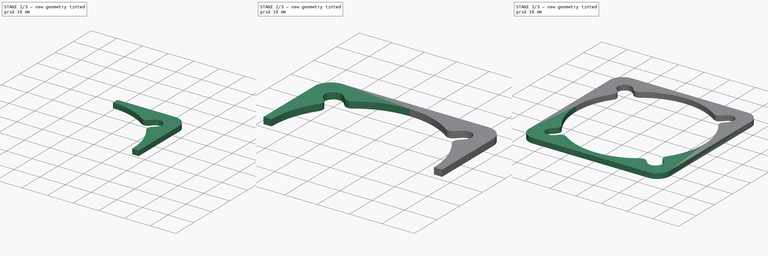
[diagram: build sequence overview — one tinted view per stage of 3, left to right]
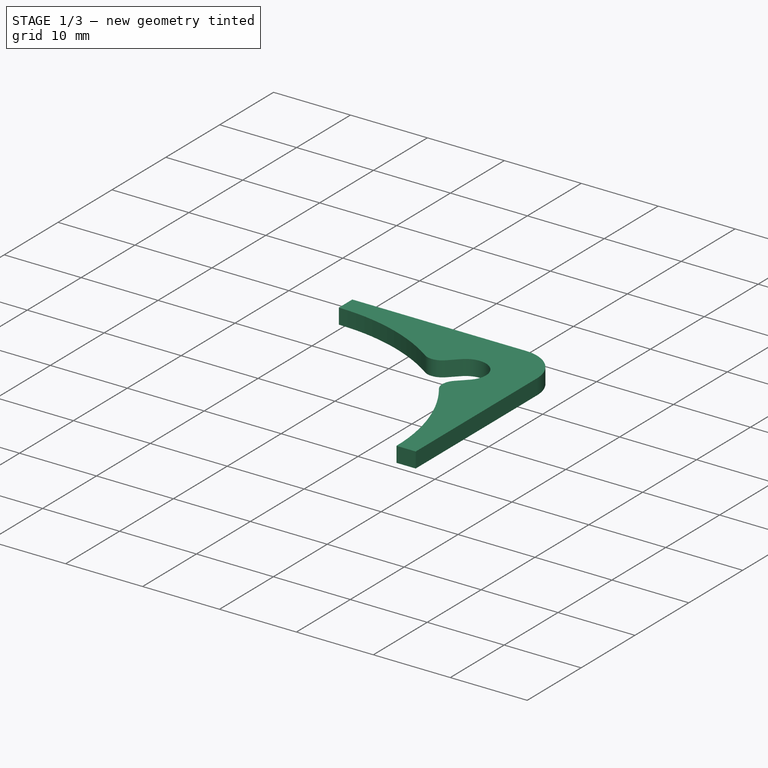
[diagram: stage 1 of 3 — iso view after this stage's code; geometry added in this stage tinted green]
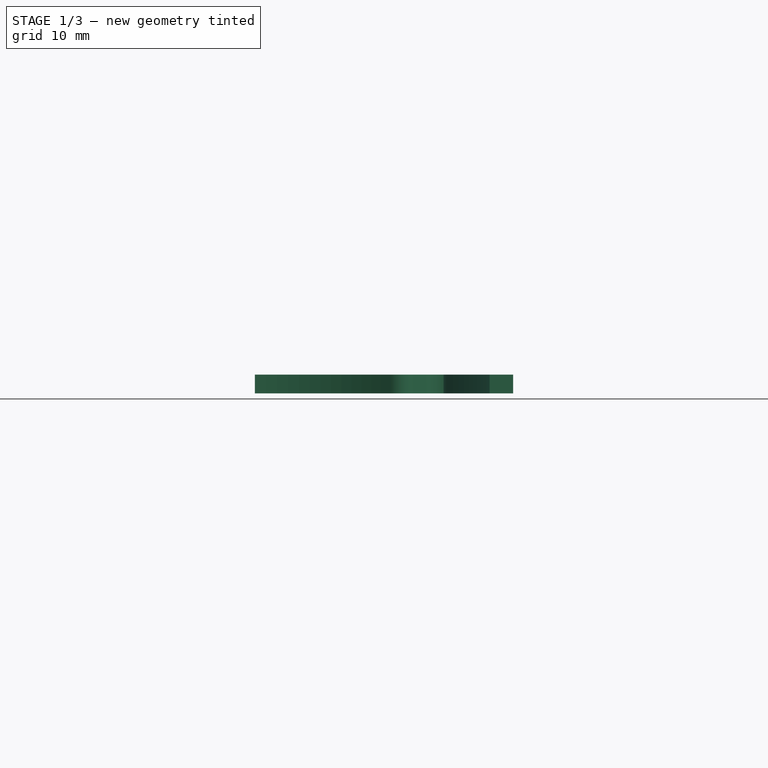
[diagram: stage 1 of 3 — front view after this stage's code; geometry added in this stage tinted green]
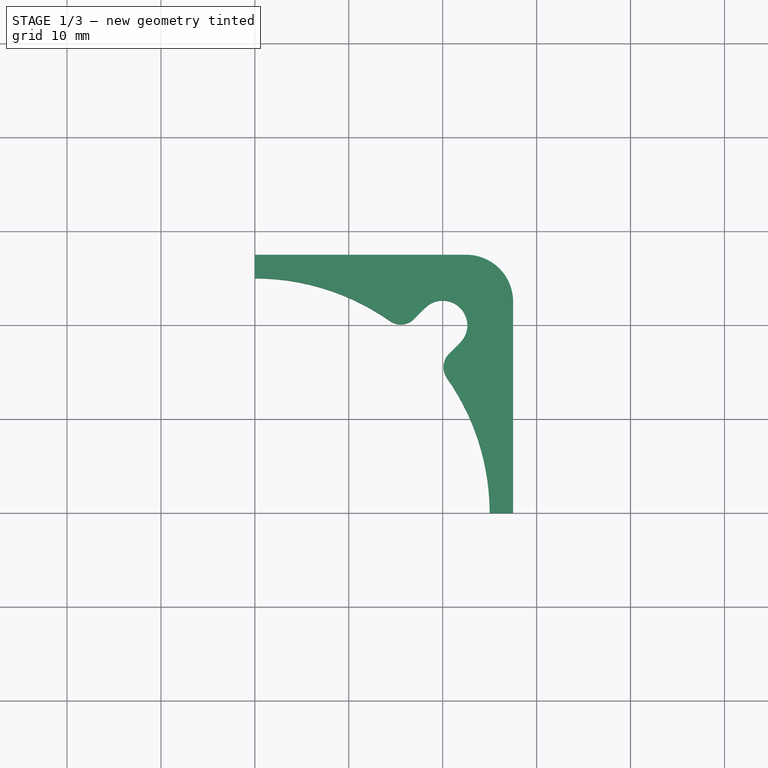
[diagram: stage 1 of 3 — top view after this stage's code; geometry added in this stage tinted green]
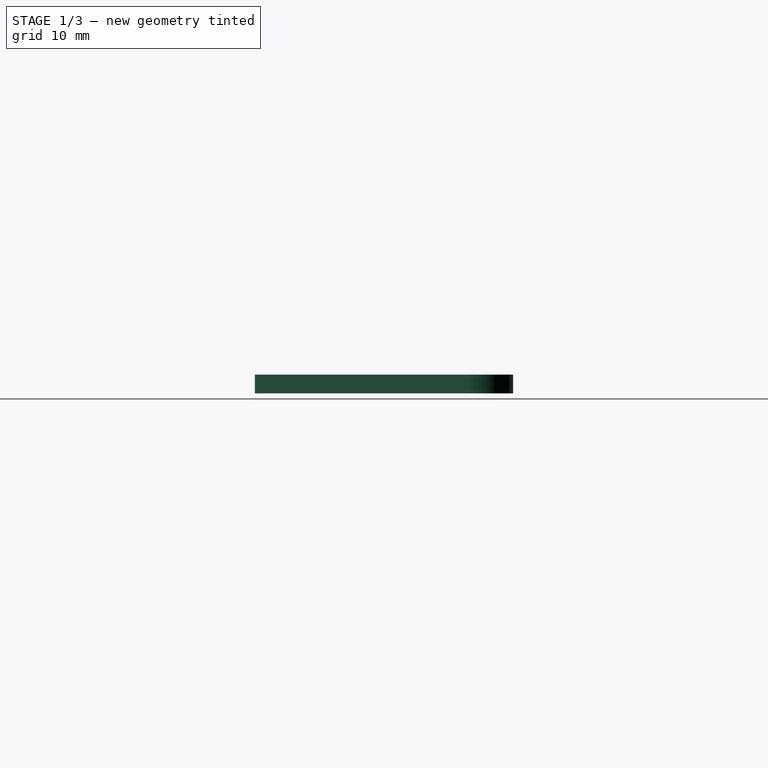
[diagram: stage 1 of 3 — right view after this stage's code; geometry added in this stage tinted green]
FCSTD DOCUMENT  (FreeCAD 0.14R3310 (Git))
Label: 22. SUPLEMENTO VENTILADOR
License: CC-BY 3.0
LicenseURL: http://creativecommons.org/licenses/by/3.0/
objects: Part::Mirroring×2, Part::Fuse×2, Sketcher::SketchObject×1, PartDesign::Pad×1, PartDesign::Fillet×1
note: 8 computed .brp shape members not serialized (recipe doc carries the construction recipe); baked Part::Feature solids carry a one-line shape summary decoded from their .brp

FEATURE [Sketcher::SketchObject] Sketch
  sketch-geometry (17):
    g0: LineSegment [constr] StartX=-27.5 StartY=27.5 StartZ=0 EndX=27.5 EndY=27.5 EndZ=0
    g1: LineSegment [constr] StartX=27.5 StartY=27.5 StartZ=0 EndX=27.5 EndY=-27.5 EndZ=0
    g2: LineSegment [constr] StartX=27.5 StartY=-27.5 StartZ=0 EndX=-27.5 EndY=-27.5 EndZ=0
    g3: LineSegment [constr] StartX=-27.5 StartY=-27.5 StartZ=0 EndX=-27.5 EndY=27.5 EndZ=0
    g4: Circle [constr] CenterX=0 CenterY=1e-12 CenterZ=0 NormalX=0 NormalY=0 NormalZ=1 Radius=25
    g5: LineSegment [constr] StartX=0 StartY=0 StartZ=0 EndX=27.5 EndY=27.5 EndZ=0
    g6: ArcOfCircle CenterX=19.997 CenterY=19.997 CenterZ=0 NormalX=0 NormalY=0 NormalZ=1 Radius=2.63 StartAngle=5.49779 EndAngle=8.63938
    g7: LineSegment StartX=21.8567 StartY=18.1373 StartZ=0 EndX=20.6688 EndY=16.9494 EndZ=0
    g8: LineSegment StartX=18.1373 StartY=21.8567 StartZ=0 EndX=16.9494 EndY=20.6688 EndZ=0
    g9: ArcOfCircle CenterX=22.083 CenterY=15.5352 CenterZ=0 NormalX=0 NormalY=0 NormalZ=1 Radius=2 StartAngle=2.35619 EndAngle=3.75466
    g10: ArcOfCircle CenterX=15.5352 CenterY=22.083 CenterZ=0 NormalX=0 NormalY=0 NormalZ=1 Radius=2 StartAngle=4.09977 EndAngle=5.49779
    g11: ArcOfCircle CenterX=0 CenterY=0 CenterZ=0 NormalX=0 NormalY=0 NormalZ=1 Radius=25 StartAngle=0.957696 EndAngle=1.5708
    g12: ArcOfCircle CenterX=0 CenterY=0 CenterZ=0 NormalX=0 NormalY=0 NormalZ=1 Radius=25 StartAngle=0 EndAngle=0.613065
    g13: LineSegment StartX=0 StartY=25 StartZ=0 EndX=0 EndY=27.5 EndZ=0
    g14: LineSegment StartX=0 StartY=27.5 StartZ=0 EndX=27.5 EndY=27.5 EndZ=0
    g15: LineSegment StartX=27.5 StartY=27.5 StartZ=0 EndX=27.5 EndY=0 EndZ=0
    g16: LineSegment StartX=27.5 StartY=0 StartZ=0 EndX=25 EndY=0 EndZ=0
  constraints (50):
    c: Coincident(g0,g1)
    c: Coincident(g1,g2)
    c: Coincident(g2,g3)
    c: Coincident(g3,g0)
    c: Horizontal(g0)
    c: Horizontal(g2)
    c: Vertical(g1)
    c: Vertical(g3)
    c: Symmetric(g1,g0,g-1)
    c: Equal(g0,g1)
    c: Distance(g1) = 55
    c: Coincident(g4,g-1)
    c: Radius(g4) = 25
    c: Coincident(g5,g-1)
    c: Coincident(g5,g0)
    c: PointOnObject(g6,g5)
    c: Coincident(g7,g6)
    c: Parallel(g7,g5)
    c: Coincident(g8,g6)
    c: Parallel(g5,g8)
    c: Tangent(g8,g6)
    c: Tangent(g6,g7)
    c: Distance(g-1,g6) = 28.28
    c: Radius(g6) = 2.63
    c: Coincident(g9,g7)
    c: Radius(g9) = 2
    c: Tangent(g9,g7)
    c: PointOnObject(g9,g4)
    c: Tangent(g9,g4)
    c: Equal(g10,g9)
    c: Coincident(g10,g8)
    c: Tangent(g10,g8)
    c: Equal(g8,g7)
    c: PointOnObject(g10,g4)
    c: Coincident(g11,g-1)
    c: Coincident(g11,g10)
    c: PointOnObject(g11,g-2)
    c: Coincident(g12,g-1)
    c: Coincident(g12,g9)
    c: PointOnObject(g12,g-1)
    c: Coincident(g13,g11)
    c: PointOnObject(g13,g0)
    c: Vertical(g13)
    c: Coincident(g14,g13)
    c: Coincident(g14,g0)
    c: Coincident(g15,g0)
    c: Vertical(g15)
    c: PointOnObject(g15,g-1)
    c: Coincident(g16,g15)
    c: Coincident(g16,g12)
FEATURE [PartDesign::Pad] Pad
  Length = 2
  Length2 = 100
  Sketch = -> Sketch
  Type = 0
FEATURE [PartDesign::Fillet] Fillet
  Base = -> Pad [Edge17]
  Radius = 5
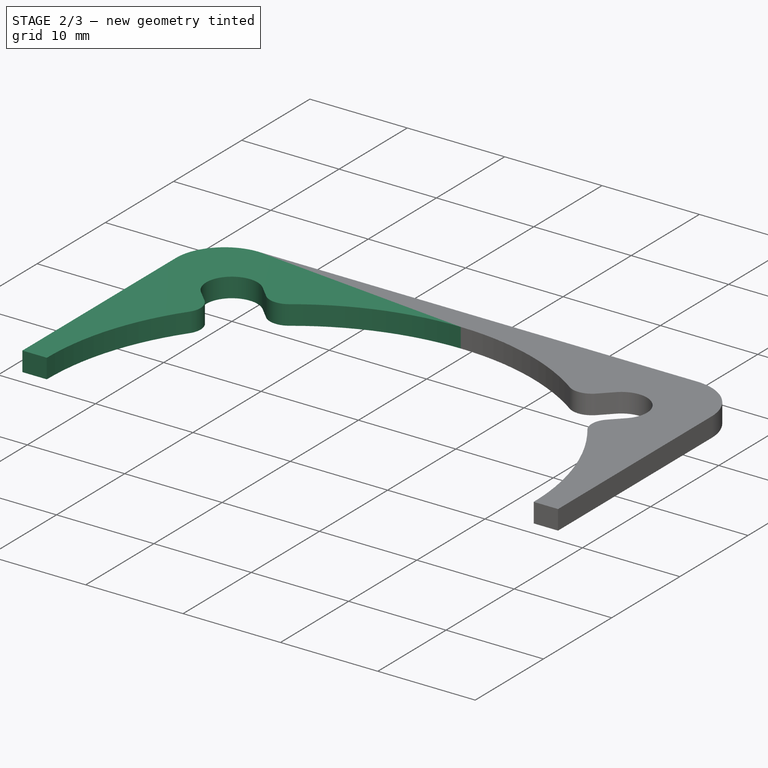
[diagram: stage 2 of 3 — iso view after this stage's code; geometry added in this stage tinted green]
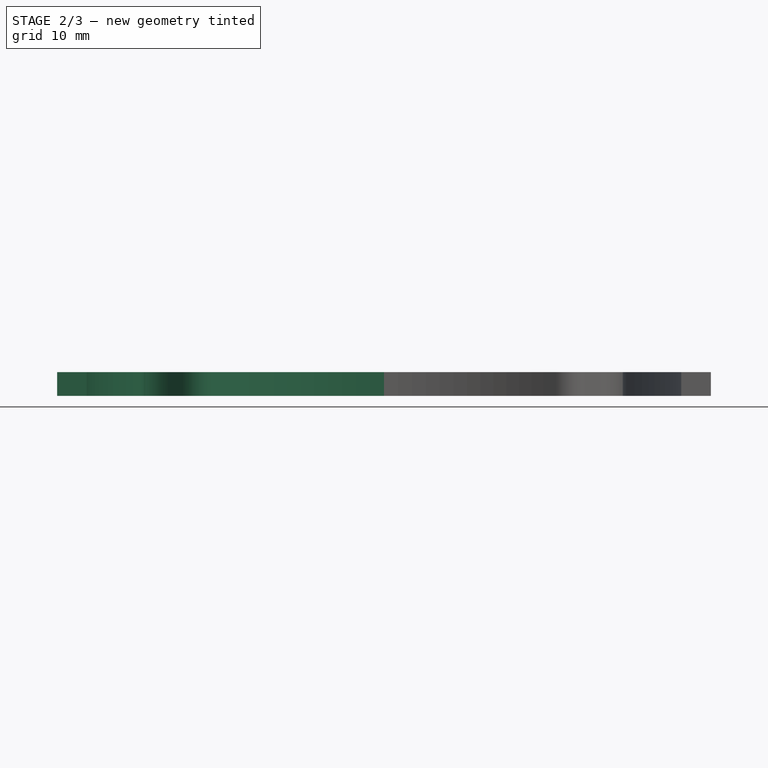
[diagram: stage 2 of 3 — front view after this stage's code; geometry added in this stage tinted green]
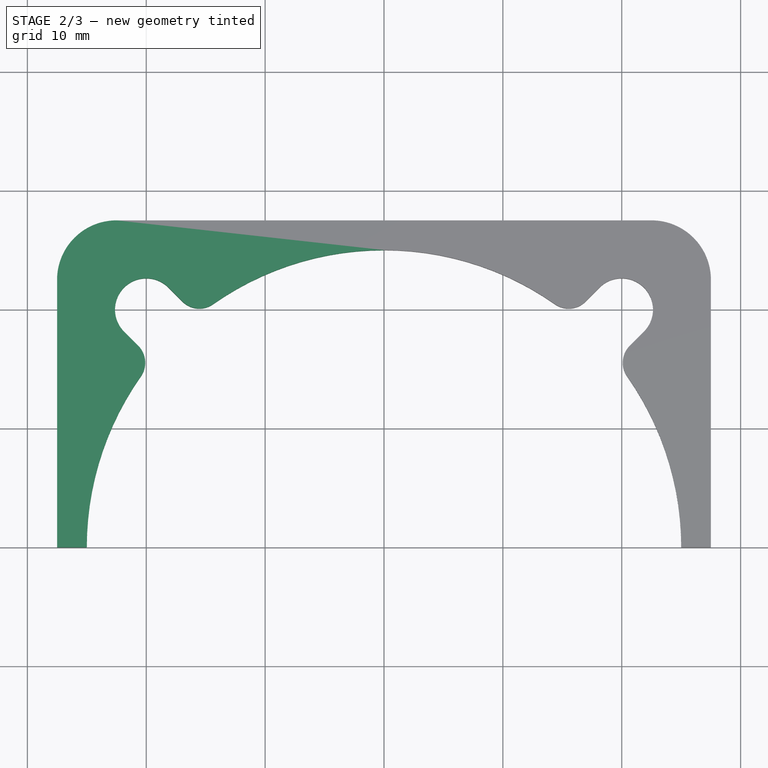
[diagram: stage 2 of 3 — top view after this stage's code; geometry added in this stage tinted green]
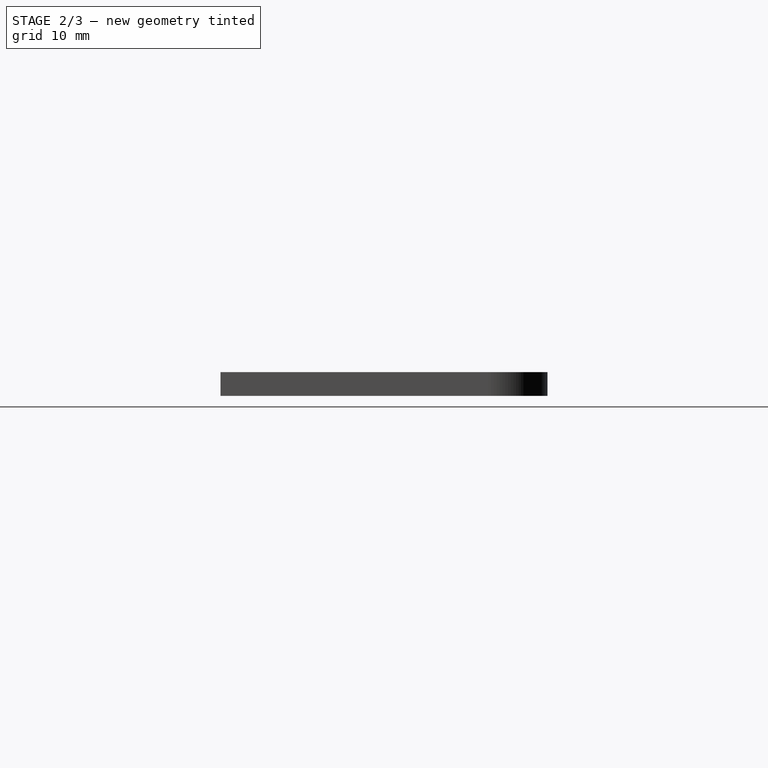
[diagram: stage 2 of 3 — right view after this stage's code; geometry added in this stage tinted green]
FEATURE [Part::Mirroring] Part__Mirroring  label="Fillet (Mirror #1)"
  Base = (0,0,0)
  Normal = (1,0,0)
  Source = -> Fillet
FEATURE [Part::Fuse] Fusion
  Base = -> Fillet
  Tool = -> Part__Mirroring
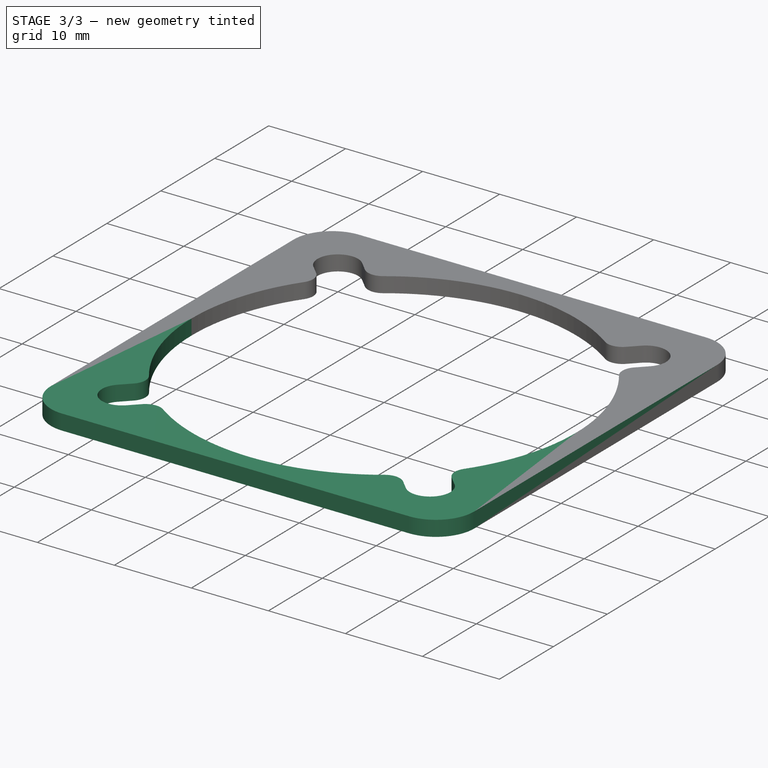
[diagram: stage 3 of 3 — iso view after this stage's code; geometry added in this stage tinted green]
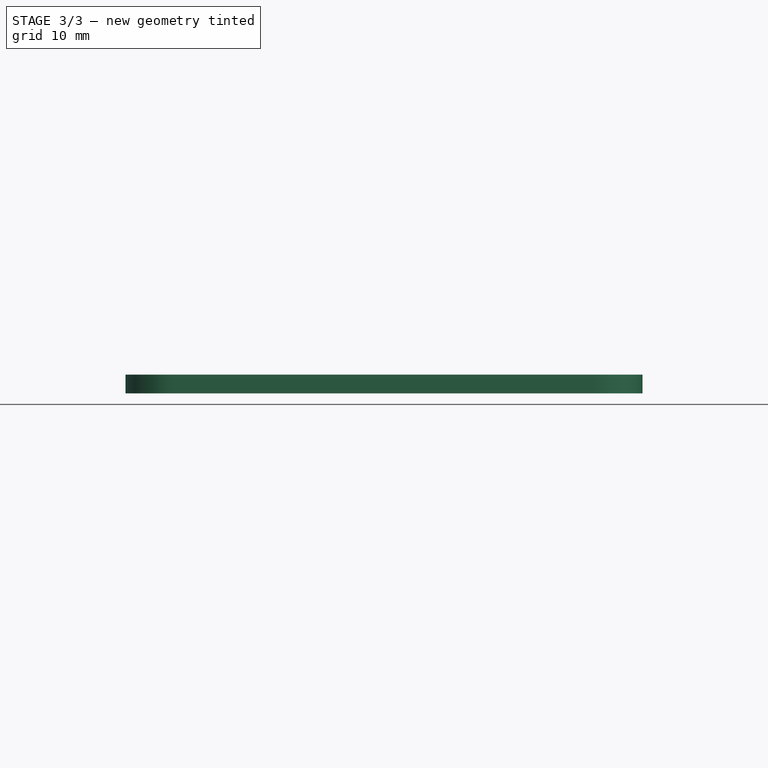
[diagram: stage 3 of 3 — front view after this stage's code; geometry added in this stage tinted green]
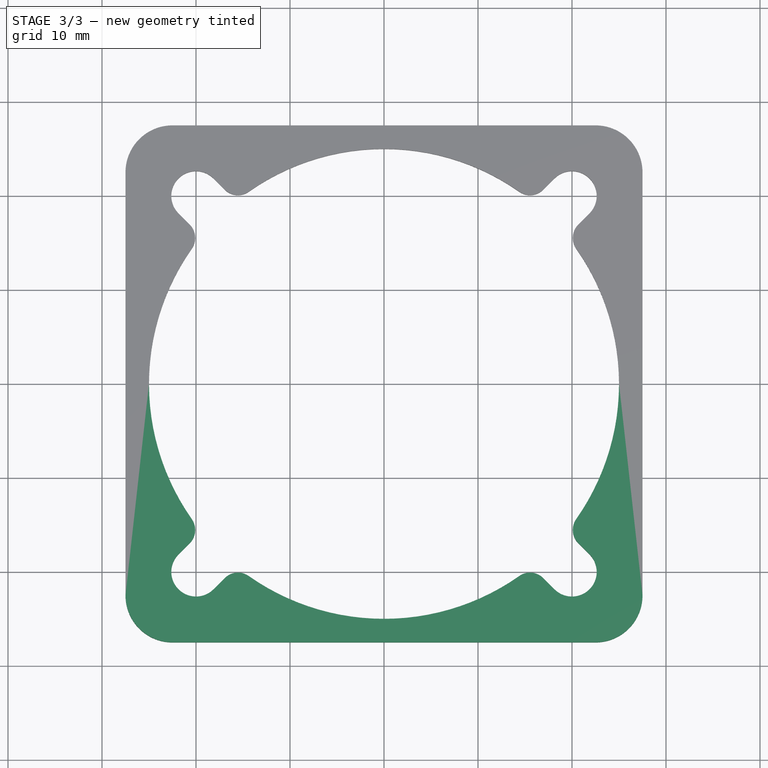
[diagram: stage 3 of 3 — top view after this stage's code; geometry added in this stage tinted green]
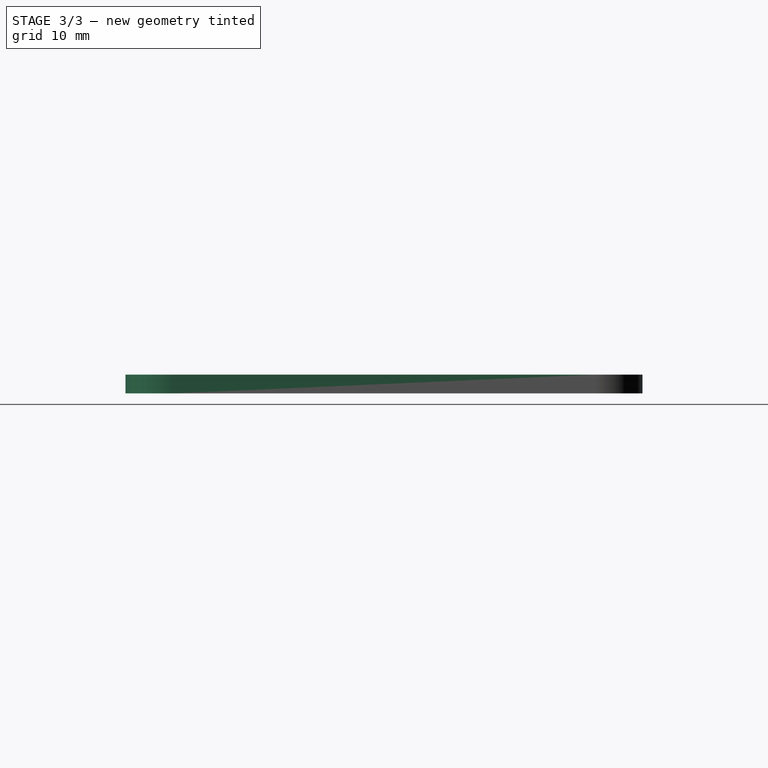
[diagram: stage 3 of 3 — right view after this stage's code; geometry added in this stage tinted green]
FEATURE [Part::Mirroring] Part__Mirroring001  label="Fusion (Mirror #2)"
  Base = (0,0,0)
  Normal = (0,1,0)
  Source = -> Fusion
FEATURE [Part::Fuse] Fusion001
  Base = -> Fusion
  Tool = -> Part__Mirroring001
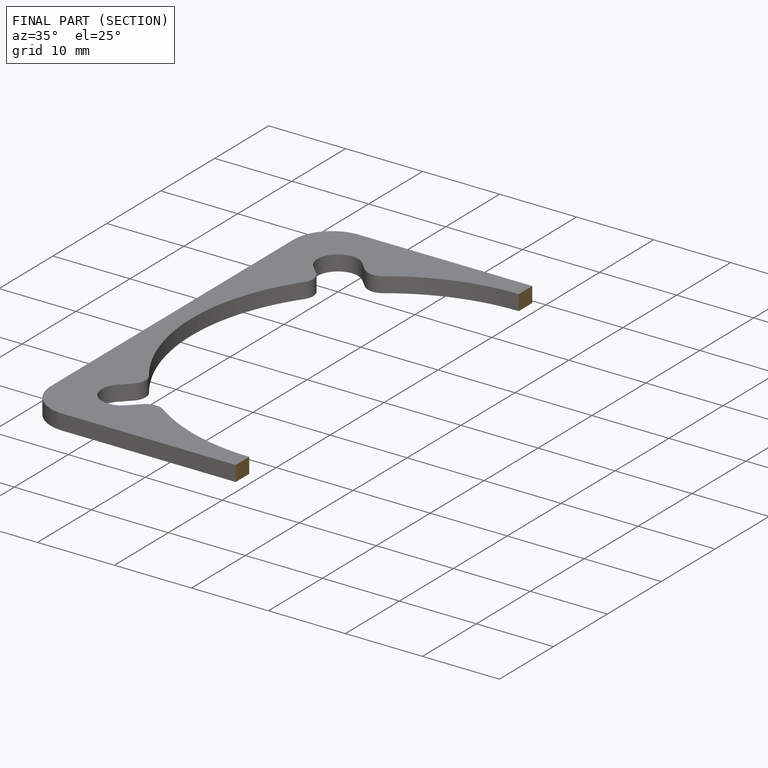
[diagram: finished part — half-section view (interior)]
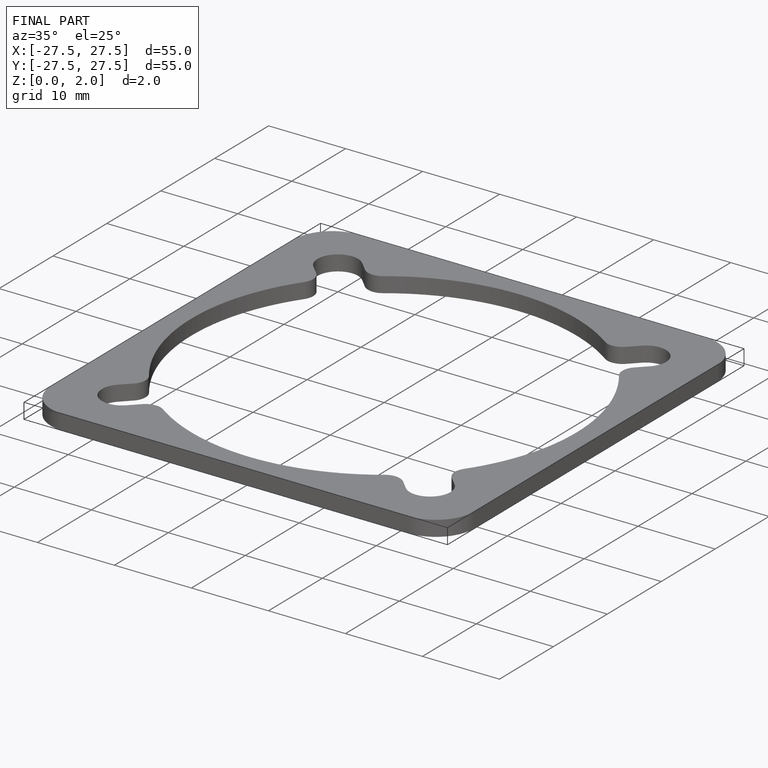
[diagram: finished part — iso view with bounding-box wireframe]
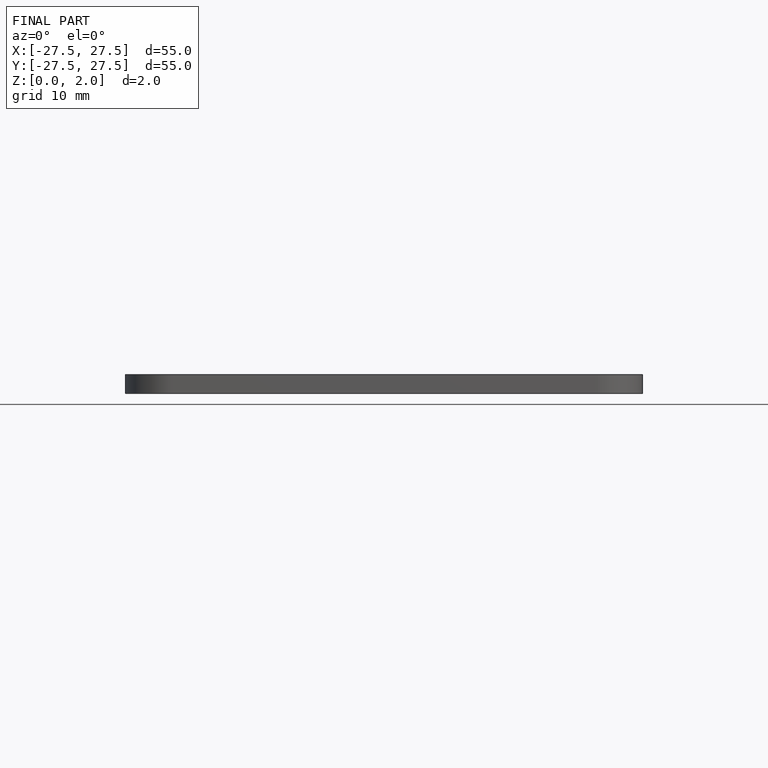
[diagram: finished part — front view with bounding-box wireframe]
